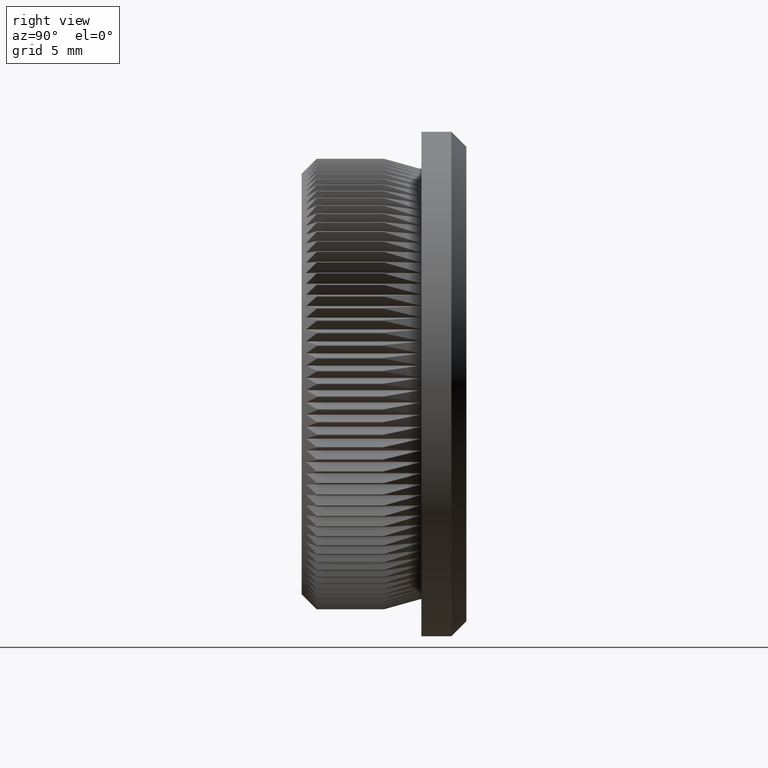
[diagram: clean part render]
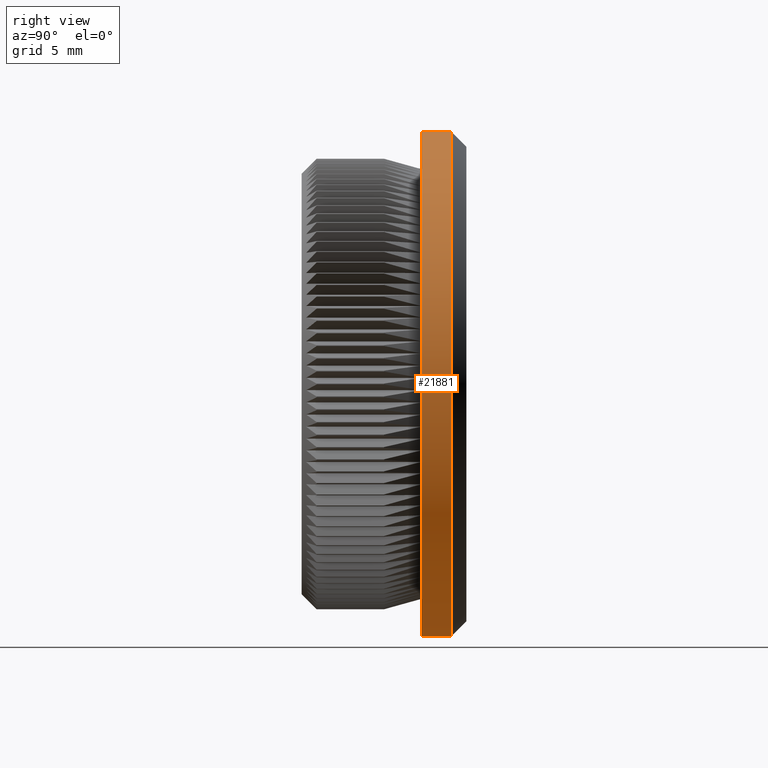
[diagram: same view with one face highlighted and labeled with its STEP entity id]
A machine part, right view. The second image highlights one B-rep face of the part: STEP entity #21881.
In plain terms, the highlighted cylindrical surface (partial cylindrical patch) has radius 16.85 mm, axis along (-0, -1, -0).
Its self-contained STEP definition (entity closure, byte-faithful):
#676 = DIRECTION ( 'NONE',  ( 0.0000000000000000000, 0.0000000000000000000, -1.000000000000000000 ) ) ;
#803 = CYLINDRICAL_SURFACE ( 'NONE', #14938, 16.85000000000000100 ) ;
#894 = EDGE_CURVE ( 'NONE', #6823, #2932, #18256, .T. ) ;
#1178 = DIRECTION ( 'NONE',  ( 0.0000000000000000000, 0.0000000000000000000, -1.000000000000000000 ) ) ;
#1326 = AXIS2_PLACEMENT_3D ( 'NONE', #23313, #6053, #8420 ) ;
#1394 = VECTOR ( 'NONE', #16650, 1000.000000000000000 ) ;
#2332 = ORIENTED_EDGE ( 'NONE', *, *, #25896, .T. ) ;
#2932 = VERTEX_POINT ( 'NONE', #21164 ) ;
#3043 = CIRCLE ( 'NONE', #1326, 16.85000000000000100 ) ;
#3383 = EDGE_CURVE ( 'NONE', #25947, #6823, #3731, .T. ) ;
#3731 = LINE ( 'NONE', #16165, #1394 ) ;
#5041 = ORIENTED_EDGE ( 'NONE', *, *, #3383, .F. ) ;
#5089 = ORIENTED_EDGE ( 'NONE', *, *, #894, .F. ) ;
#5810 = LINE ( 'NONE', #21640, #26243 ) ;
#5920 = ORIENTED_EDGE ( 'NONE', *, *, #11467, .T. ) ;
#6053 = DIRECTION ( 'NONE',  ( -0.0000000000000000000, -1.000000000000000000, -0.0000000000000000000 ) ) ;
#6823 = VERTEX_POINT ( 'NONE', #23919 ) ;
#8420 = DIRECTION ( 'NONE',  ( 0.0000000000000000000, 0.0000000000000000000, 1.000000000000000000 ) ) ;
#9748 = DIRECTION ( 'NONE',  ( -0.0000000000000000000, -1.000000000000000000, -0.0000000000000000000 ) ) ;
#9895 = FACE_OUTER_BOUND ( 'NONE', #21422, .T. ) ;
#11467 = EDGE_CURVE ( 'NONE', #26189, #2932, #5810, .T. ) ;
#13164 = DIRECTION ( 'NONE',  ( -0.0000000000000000000, -1.000000000000000000, -0.0000000000000000000 ) ) ;
#13302 = DIRECTION ( 'NONE',  ( -0.0000000000000000000, -1.000000000000000000, -0.0000000000000000000 ) ) ;
#14856 = AXIS2_PLACEMENT_3D ( 'NONE', #27026, #9748, #1178 ) ;
#14938 = AXIS2_PLACEMENT_3D ( 'NONE', #24198, #13164, #676 ) ;
#16165 = CARTESIAN_POINT ( 'NONE',  ( 0.0000000000000000000, 0.0000000000000000000, -16.85000000000000100 ) ) ;
#16650 = DIRECTION ( 'NONE',  ( -0.0000000000000000000, -1.000000000000000000, -0.0000000000000000000 ) ) ;
#16789 = CARTESIAN_POINT ( 'NONE',  ( 0.0000000000000000000, 9.999999999999991100, -16.85000000000000100 ) ) ;
#18256 = CIRCLE ( 'NONE', #14856, 16.85000000000000100 ) ;
#21164 = CARTESIAN_POINT ( 'NONE',  ( 2.063529856563290200E-015, 8.000000000000000000, 16.85000000000000100 ) ) ;
#21422 = EDGE_LOOP ( 'NONE', ( #2332, #5920, #5089, #5041 ) ) ;
#21640 = CARTESIAN_POINT ( 'NONE',  ( 2.063529856563290200E-015, 0.0000000000000000000, 16.85000000000000100 ) ) ;
#21881 = ADVANCED_FACE ( 'NONE', ( #9895 ), #803, .T. ) ;
#23313 = CARTESIAN_POINT ( 'NONE',  ( 0.0000000000000000000, 9.999999999999991100, 0.0000000000000000000 ) ) ;
#23919 = CARTESIAN_POINT ( 'NONE',  ( 0.0000000000000000000, 8.000000000000000000, -16.85000000000000100 ) ) ;
#24198 = CARTESIAN_POINT ( 'NONE',  ( 0.0000000000000000000, 0.0000000000000000000, 0.0000000000000000000 ) ) ;
#25896 = EDGE_CURVE ( 'NONE', #25947, #26189, #3043, .T. ) ;
#25947 = VERTEX_POINT ( 'NONE', #16789 ) ;
#26189 = VERTEX_POINT ( 'NONE', #27083 ) ;
#26243 = VECTOR ( 'NONE', #13302, 1000.000000000000000 ) ;
#27026 = CARTESIAN_POINT ( 'NONE',  ( 0.0000000000000000000, 8.000000000000000000, 0.0000000000000000000 ) ) ;
#27083 = CARTESIAN_POINT ( 'NONE',  ( 2.063529856563290200E-015, 9.999999999999991100, 16.85000000000000100 ) ) ;